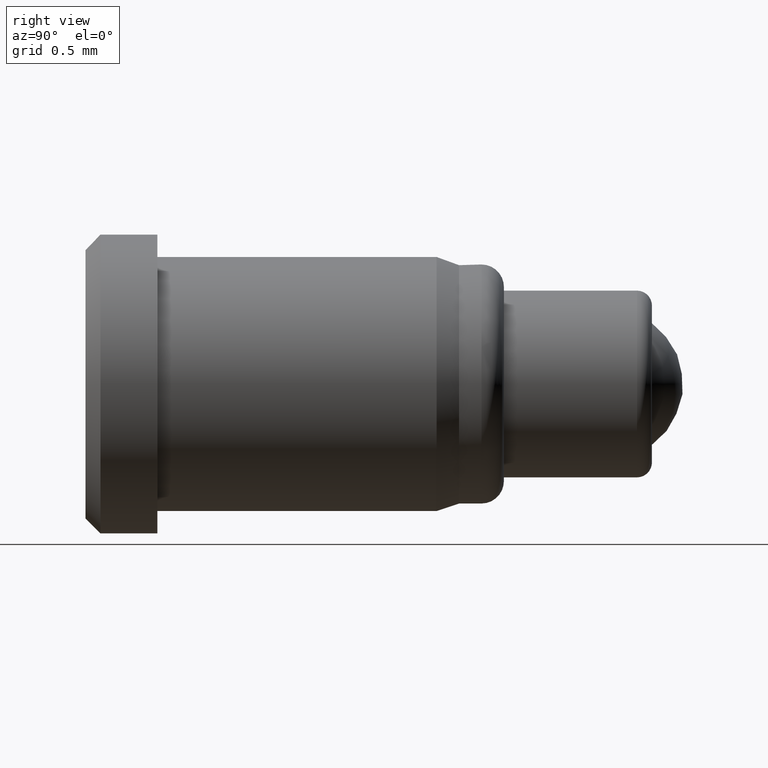
[diagram: clean part render]
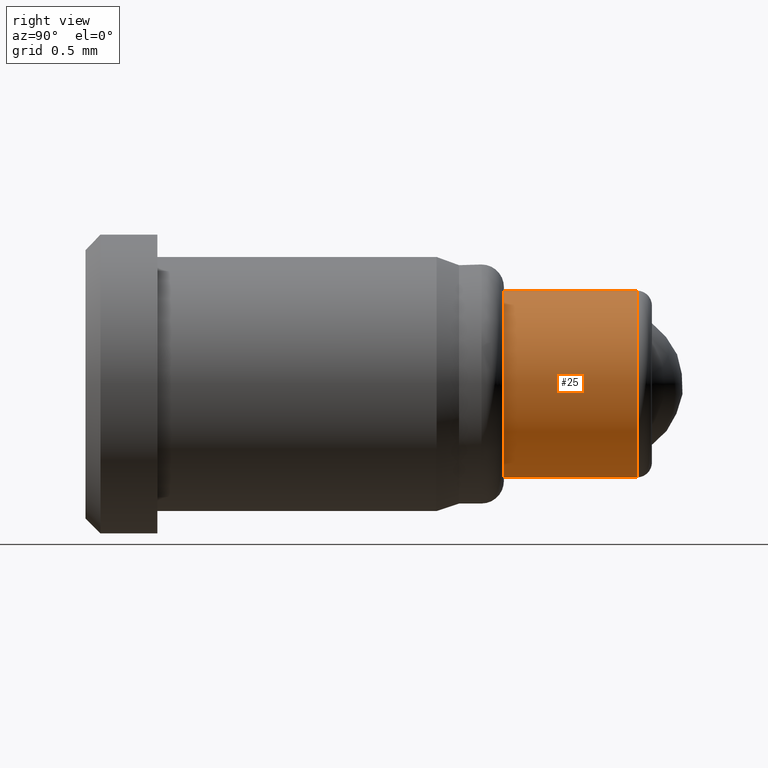
[diagram: same view with one face highlighted and labeled with its STEP entity id]
A machine part, right view. The second image highlights one B-rep face of the part: STEP entity #25.
In plain terms, the highlighted cylindrical surface (bore or boss wall) has radius 0.625 mm, axis along (-0, -1, -0).
Its self-contained STEP definition (entity closure, byte-faithful):
#25 = ADVANCED_FACE ( 'NONE', ( #99, #279 ), #259, .T. ) ;
#34 = DIRECTION ( 'NONE',  ( -0.0000000000000000000, -1.000000000000000000, -0.0000000000000000000 ) ) ;
#53 = AXIS2_PLACEMENT_3D ( 'NONE', #268, #176, #130 ) ;
#56 = EDGE_CURVE ( 'NONE', #155, #155, #254, .T. ) ;
#70 = CARTESIAN_POINT ( 'NONE',  ( 0.0000000000000000000, 0.0000000000000000000, 0.0000000000000000000 ) ) ;
#99 = FACE_OUTER_BOUND ( 'NONE', #165, .T. ) ;
#115 = DIRECTION ( 'NONE',  ( 0.0000000000000000000, 0.0000000000000000000, -1.000000000000000000 ) ) ;
#121 = ORIENTED_EDGE ( 'NONE', *, *, #56, .T. ) ;
#130 = DIRECTION ( 'NONE',  ( 0.0000000000000000000, 0.0000000000000000000, 1.000000000000000000 ) ) ;
#137 = VERTEX_POINT ( 'NONE', #182 ) ;
#145 = EDGE_CURVE ( 'NONE', #137, #137, #253, .T. ) ;
#155 = VERTEX_POINT ( 'NONE', #184 ) ;
#165 = EDGE_LOOP ( 'NONE', ( #121 ) ) ;
#170 = DIRECTION ( 'NONE',  ( 0.0000000000000000000, 0.0000000000000000000, -1.000000000000000000 ) ) ;
#176 = DIRECTION ( 'NONE',  ( -0.0000000000000000000, -1.000000000000000000, -0.0000000000000000000 ) ) ;
#177 = ORIENTED_EDGE ( 'NONE', *, *, #145, .F. ) ;
#182 = CARTESIAN_POINT ( 'NONE',  ( 0.0000000000000000000, 2.799999999999999822, -0.6250000000000001110 ) ) ;
#184 = CARTESIAN_POINT ( 'NONE',  ( 0.0000000000000000000, 3.690827485700507449, 0.6250000000000001110 ) ) ;
#191 = CARTESIAN_POINT ( 'NONE',  ( 0.0000000000000000000, 2.799999999999999822, 0.0000000000000000000 ) ) ;
#235 = EDGE_LOOP ( 'NONE', ( #177 ) ) ;
#252 = AXIS2_PLACEMENT_3D ( 'NONE', #191, #34, #170 ) ;
#253 = CIRCLE ( 'NONE', #252, 0.6250000000000001110 ) ;
#254 = CIRCLE ( 'NONE', #53, 0.6250000000000001110 ) ;
#259 = CYLINDRICAL_SURFACE ( 'NONE', #270, 0.6250000000000001110 ) ;
#268 = CARTESIAN_POINT ( 'NONE',  ( 0.0000000000000000000, 3.690827485700507449, 0.0000000000000000000 ) ) ;
#270 = AXIS2_PLACEMENT_3D ( 'NONE', #70, #298, #115 ) ;
#279 = FACE_OUTER_BOUND ( 'NONE', #235, .T. ) ;
#298 = DIRECTION ( 'NONE',  ( -0.0000000000000000000, -1.000000000000000000, -0.0000000000000000000 ) ) ;